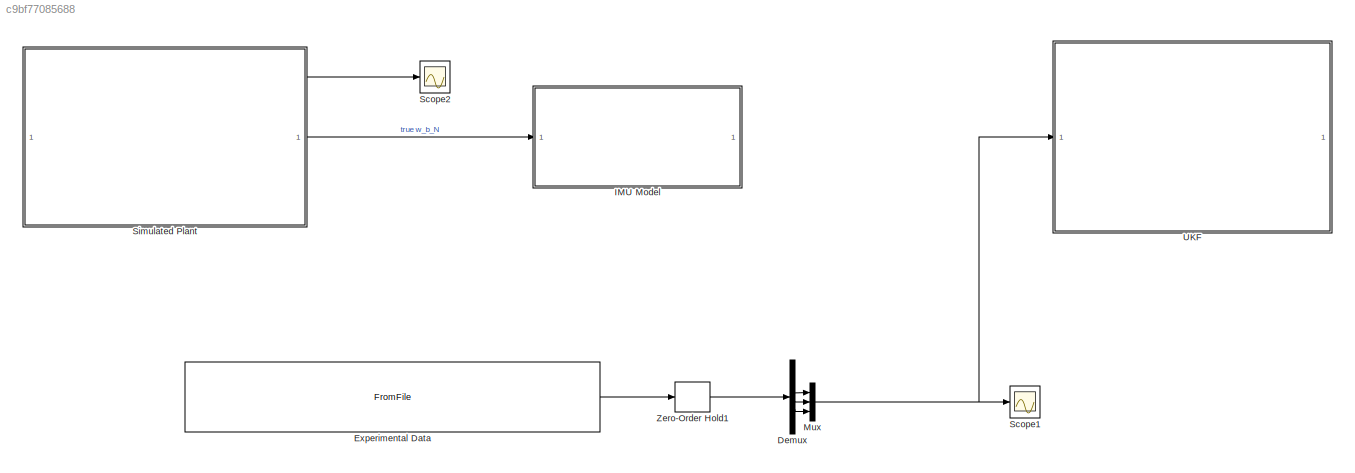
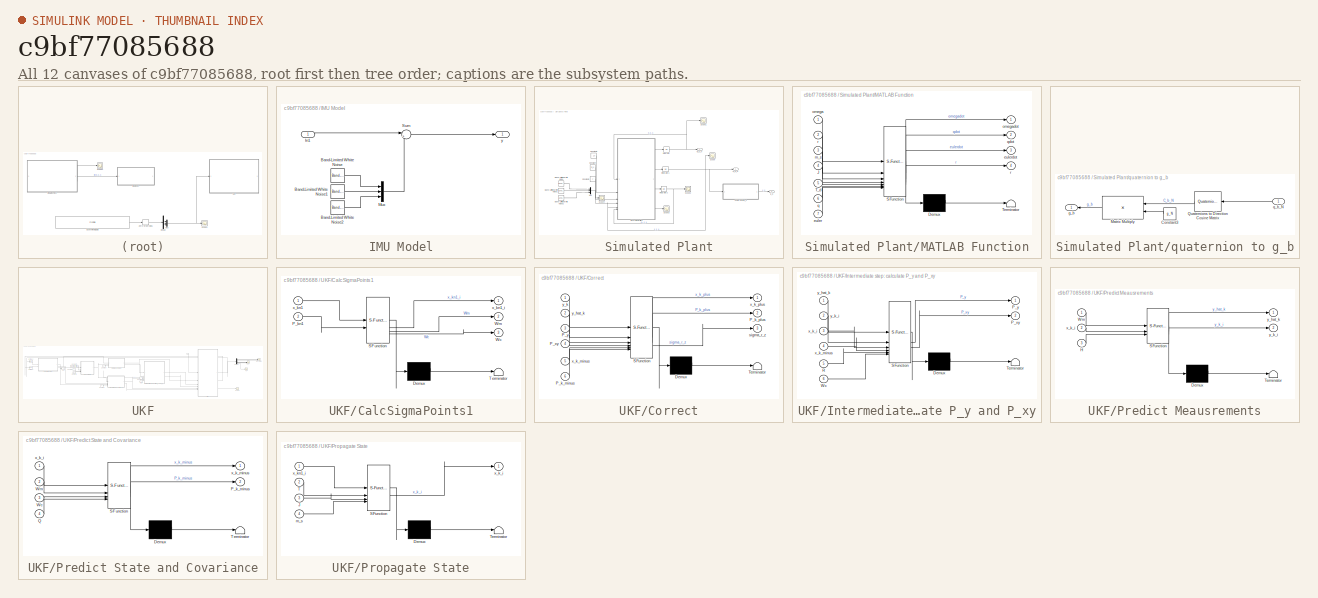
[diagram: thumbnail index - all 12 canvases of the model, root first then tree order]
MODEL slx_c9bf77085688
KIND model
CONFIG AbsTol = auto
CONFIG EnableMultiTasking = off
CONFIG FixedStep = auto
CONFIG MaxStep = auto
CONFIG MinStep = auto
CONFIG RelTol = 1e-3
CONFIG SampleTimeConstraint = Unconstrained
CONFIG SolverName = ode15s
CONFIG StartTime = 0.0
CONFIG StopTime = t_final
BLOCK [Demux] Demux
  Outputs = 8
BLOCK [FromFile] Experimental Data
  FileName = <userpath>\OneDrive\Desktop\SADS-Simulink\export_for_simulink\May_27_UKF_4.mat
  InterpolationWithinTimeRange = Zero order hold
  SampleTime = 0
BLOCK [SubSystem] IMU Model
  Commented = on
BLOCK [Reference] IMU Model/Band-Limited White Noise  REF=simulink/Sources/Band-Limited
White Noise
  SourceBlock = simulink/Sources/Band-Limited\nWhite Noise
  SourceType = Band-Limited White Noise.
BLOCK [Reference] IMU Model/Band-Limited White Noise1  REF=simulink/Sources/Band-Limited
White Noise
  SourceBlock = simulink/Sources/Band-Limited\nWhite Noise
  SourceType = Band-Limited White Noise.
BLOCK [Reference] IMU Model/Band-Limited White Noise2  REF=simulink/Sources/Band-Limited
White Noise
  SourceBlock = simulink/Sources/Band-Limited\nWhite Noise
  SourceType = Band-Limited White Noise.
BLOCK [Inport] IMU Model/In1
BLOCK [Mux] IMU Model/Mux
  DisplayOption = bar
  Inputs = 3
BLOCK [Sum] IMU Model/Sum
  Inputs = |++
BLOCK [Outport] IMU Model/y
BLOCK [Mux] Mux
  DisplayOption = bar
  Inputs = 3
BLOCK [Scope] Scope1
  Floating = off
  NumInputPorts = 1
  ScopeSpecificationString = Simulink.scopes.TimeScopeBlockCfg('CurrentConfiguration', extmgr.ConfigurationSet(extmgr.Configuration('Core','General UI',true),extmgr.Configuration('Core','Source UI',true),extmgr.Configuration('Sources','WiredSimulink',true,'DataLoggingVariableName','ScopeData1'),extmgr.Configuration('Visuals','Time Domain',true,'SerializedDisplays',{struct('MinYLimReal','-0.15537','MaxYLimReal','0.20984','YLab...<+1625ch>
BLOCK [Scope] Scope2
  Commented = on
  Floating = off
  NumInputPorts = 1
  ScopeSpecificationString = Simulink.scopes.TimeScopeBlockCfg('CurrentConfiguration', extmgr.ConfigurationSet(extmgr.Configuration('Core','General UI',true),extmgr.Configuration('Core','Source UI',true),extmgr.Configuration('Sources','WiredSimulink',true,'DataLoggingVariableName','ScopeData2'),extmgr.Configuration('Visuals','Time Domain',true,'SerializedDisplays',{struct('MinYLimReal','-0.223','MaxYLimReal','1.13589','YLabel...<+1534ch>
BLOCK [SubSystem] Simulated Plant
  Commented = on
BLOCK [Reference] Simulated Plant/Band-Limited White Noise  REF=simulink/Sources/Band-Limited
White Noise
  SourceBlock = simulink/Sources/Band-Limited\nWhite Noise
  SourceType = Band-Limited White Noise.
BLOCK [Reference] Simulated Plant/Band-Limited White Noise1  REF=simulink/Sources/Band-Limited
White Noise
  SourceBlock = simulink/Sources/Band-Limited\nWhite Noise
  SourceType = Band-Limited White Noise.
BLOCK [Reference] Simulated Plant/Band-Limited White Noise2  REF=simulink/Sources/Band-Limited
White Noise
  SourceBlock = simulink/Sources/Band-Limited\nWhite Noise
  SourceType = Band-Limited White Noise.
BLOCK [Constant] Simulated Plant/Constant
  Value = m_s
BLOCK [Constant] Simulated Plant/Constant1
  Value = J
BLOCK [Constant] Simulated Plant/Constant2
  Value = r_0
BLOCK [Integrator] Simulated Plant/Integrator
  InitialCondition = omega_0
BLOCK [Integrator] Simulated Plant/Integrator1
  InitialCondition = q_0
  NameLocation = top
BLOCK [Integrator] Simulated Plant/Integrator2
  InitialCondition = EA_0
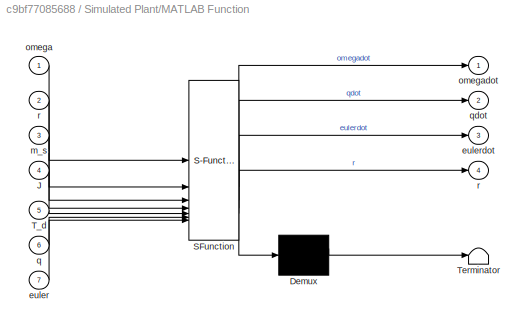
BLOCK [SubSystem] Simulated Plant/MATLAB Function
  ErrorFcn = Stateflow.Translate.translate
  PermitHierarchicalResolution = ExplicitOnly
  SFBlockType = MATLAB Function
  TreatAsAtomicUnit = on
BLOCK [Demux] Simulated Plant/MATLAB Function/ Demux 
  Outputs = 1
BLOCK [S-Function] Simulated Plant/MATLAB Function/ SFunction 
  EnableBusSupport = on
  FunctionName = sf_sfun
  PortCounts = [7 5]
  SFcnIsStateOwnerBlock = off
  SFunctionDeploymentMode = off
  Tag = Stateflow S-Function 4
BLOCK [Terminator] Simulated Plant/MATLAB Function/ Terminator 
BLOCK [Inport] Simulated Plant/MATLAB Function/J
  Port = 4
BLOCK [Inport] Simulated Plant/MATLAB Function/T_d
  Port = 5
BLOCK [Inport] Simulated Plant/MATLAB Function/euler
  Port = 7
BLOCK [Outport] Simulated Plant/MATLAB Function/eulerdot
  Port = 3
BLOCK [Inport] Simulated Plant/MATLAB Function/m_s
  Port = 3
BLOCK [Inport] Simulated Plant/MATLAB Function/omega
BLOCK [Outport] Simulated Plant/MATLAB Function/omegadot
BLOCK [Inport] Simulated Plant/MATLAB Function/q
  Port = 6
BLOCK [Outport] Simulated Plant/MATLAB Function/qdot
  Port = 2
BLOCK [Outport] Simulated Plant/MATLAB Function/r
  Port = 4
BLOCK [Inport] Simulated Plant/MATLAB Function/r 
  Port = 2
BLOCK [Mux] Simulated Plant/Mux
  DisplayOption = bar
  Inputs = 3
BLOCK [Scope] Simulated Plant/Scope
  Floating = off
  NumInputPorts = 1
  ScopeSpecificationString = Simulink.scopes.TimeScopeBlockCfg('CurrentConfiguration', extmgr.ConfigurationSet(extmgr.Configuration('Core','General UI',true),extmgr.Configuration('Core','Source UI',true),extmgr.Configuration('Sources','WiredSimulink',true,'DataLogging',true,'DataLoggingVariableName','q_b_N','DataLoggingSaveFormat','StructureWithTime'),extmgr.Configuration('Visuals','Time Domain',true,'SerializedDisplays',{str...<+1570ch>
BLOCK [Scope] Simulated Plant/Scope1
  Floating = off
  NumInputPorts = 1
  ScopeSpecificationString = Simulink.scopes.TimeScopeBlockCfg('CurrentConfiguration', extmgr.ConfigurationSet(extmgr.Configuration('Core','General UI',true),extmgr.Configuration('Core','Source UI',true),extmgr.Configuration('Sources','WiredSimulink',true,'DataLoggingVariableName','ScopeData1'),extmgr.Configuration('Visuals','Time Domain',true,'SerializedDisplays',{struct('MinYLimReal','0.00741','MaxYLimReal','0.55473','YLabe...<+1503ch>
BLOCK [Scope] Simulated Plant/Scope2
  Floating = off
  NumInputPorts = 1
  ScopeSpecificationString = Simulink.scopes.TimeScopeBlockCfg('CurrentConfiguration', extmgr.ConfigurationSet(extmgr.Configuration('Core','General UI',true),extmgr.Configuration('Core','Source UI',true),extmgr.Configuration('Sources','WiredSimulink',true,'DataLoggingVariableName','EA_b_N','DataLogging',true,'DataLoggingSaveFormat','StructureWithTime'),extmgr.Configuration('Visuals','Time Domain',true,'SerializedDisplays',{st...<+1609ch>
BLOCK [Scope] Simulated Plant/Scope3
  Floating = off
  NumInputPorts = 1
  ScopeSpecificationString = Simulink.scopes.TimeScopeBlockCfg('CurrentConfiguration', extmgr.ConfigurationSet(extmgr.Configuration('Core','General UI',true),extmgr.Configuration('Core','Source UI',true),extmgr.Configuration('Sources','WiredSimulink',true,'DataLoggingVariableName','r_b','DataLogging',true,'DataLoggingSaveFormat','StructureWithTime'),extmgr.Configuration('Visuals','Time Domain',true,'SerializedDisplays',{struc...<+1619ch>
BLOCK [Scope] Simulated Plant/Scope4
  Floating = off
  NumInputPorts = 1
  ScopeSpecificationString = Simulink.scopes.TimeScopeBlockCfg('CurrentConfiguration', extmgr.ConfigurationSet(extmgr.Configuration('Core','General UI',true),extmgr.Configuration('Core','Source UI',true),extmgr.Configuration('Sources','WiredSimulink',true,'DataLoggingVariableName','ScopeData1'),extmgr.Configuration('Visuals','Time Domain',true,'SerializedDisplays',{struct('MinYLimReal','-0.000014','MaxYLimReal','0.000013','YL...<+1567ch>
BLOCK [Outport] Simulated Plant/g_b
  Port = 3
BLOCK [Outport] Simulated Plant/q_b_N
BLOCK [SubSystem] Simulated Plant/quaternion to g_b
  NameLocation = top
BLOCK [Constant] Simulated Plant/quaternion to g_b/Constant3
  NameLocation = top
  Value = g_N
BLOCK [Product] Simulated Plant/quaternion to g_b/Matrix Multiply
  Multiplication = Matrix(*)
  NameLocation = top
BLOCK [Reference] Simulated Plant/quaternion to g_b/Quaternions to Direction Cosine Matrix  REF=sharedtransform/Quaternions to 
Direction Cosine Matrix
  NameLocation = top
  SourceBlock = sharedtransform/Quaternions to \nDirection Cosine Matrix
  SourceType = Quaternion2DCM
BLOCK [Outport] Simulated Plant/quaternion to g_b/g_b
  NameLocation = top
BLOCK [Inport] Simulated Plant/quaternion to g_b/q_b_N
  NameLocation = top
BLOCK [Outport] Simulated Plant/w_b_N
  Port = 2
BLOCK [SubSystem] UKF
  TreatAsAtomicUnit = on
BLOCK [Scope] UKF/Body Rates
  Floating = off
  NumInputPorts = 3
  ScopeSpecificationString = Simulink.scopes.TimeScopeBlockCfg('CurrentConfiguration', extmgr.ConfigurationSet(extmgr.Configuration('Core','General UI',true),extmgr.Configuration('Core','Source UI',true),extmgr.Configuration('Sources','WiredSimulink',true,'DataLoggingVariableName','ScopeData3'),extmgr.Configuration('Visuals','Time Domain',true,'SerializedDisplays',{struct('MinYLimReal','-0.36403','MaxYLimReal','0.3524','YLabe...<+1528ch>
BLOCK [SubSystem] UKF/CalcSigmaPoints1
  ErrorFcn = Stateflow.Translate.translate
  PermitHierarchicalResolution = ExplicitOnly
  SFBlockType = MATLAB Function
  TreatAsAtomicUnit = on
BLOCK [Demux] UKF/CalcSigmaPoints1/ Demux 
  Outputs = 1
BLOCK [S-Function] UKF/CalcSigmaPoints1/ SFunction 
  EnableBusSupport = on
  FunctionName = sf_sfun
  PortCounts = [2 4]
  SFcnIsStateOwnerBlock = off
  SFunctionDeploymentMode = off
  Tag = Stateflow S-Function 10
BLOCK [Terminator] UKF/CalcSigmaPoints1/ Terminator 
BLOCK [Inport] UKF/CalcSigmaPoints1/P_kn1
  Port = 2
BLOCK [Outport] UKF/CalcSigmaPoints1/Wc
  Port = 3
BLOCK [Outport] UKF/CalcSigmaPoints1/Wm
  Port = 2
BLOCK [Inport] UKF/CalcSigmaPoints1/x_kn1
BLOCK [Outport] UKF/CalcSigmaPoints1/x_kn1_i
BLOCK [Constant] UKF/Constant2
  Value = sample_time
BLOCK [Constant] UKF/Constant3
  Value = J
BLOCK [Constant] UKF/Constant5
  Value = m_s
BLOCK [Constant] UKF/Constant6
  Value = Q
BLOCK [Constant] UKF/Constant7
  Value = H
BLOCK [Constant] UKF/Constant8
  Value = R
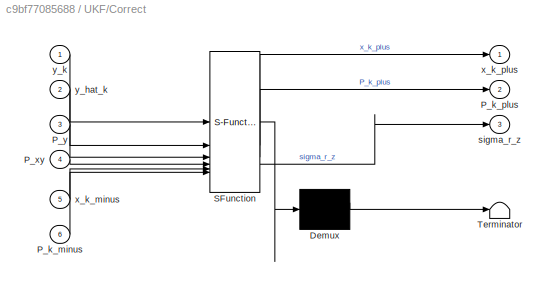
BLOCK [SubSystem] UKF/Correct
  ErrorFcn = Stateflow.Translate.translate
  PermitHierarchicalResolution = ExplicitOnly
  SFBlockType = MATLAB Function
  TreatAsAtomicUnit = on
BLOCK [Demux] UKF/Correct/ Demux 
  Outputs = 1
BLOCK [S-Function] UKF/Correct/ SFunction 
  EnableBusSupport = on
  FunctionName = sf_sfun
  PortCounts = [6 4]
  SFcnIsStateOwnerBlock = off
  SFunctionDeploymentMode = off
  Tag = Stateflow S-Function 12
BLOCK [Terminator] UKF/Correct/ Terminator 
BLOCK [Inport] UKF/Correct/P_k_minus
  Port = 6
BLOCK [Outport] UKF/Correct/P_k_plus
  Port = 2
BLOCK [Inport] UKF/Correct/P_xy
  Port = 4
BLOCK [Inport] UKF/Correct/P_y
  Port = 3
BLOCK [Outport] UKF/Correct/sigma_r_z
  Port = 3
BLOCK [Inport] UKF/Correct/x_k_minus
  Port = 5
BLOCK [Outport] UKF/Correct/x_k_plus
BLOCK [Inport] UKF/Correct/y_hat_k
  Port = 2
BLOCK [Inport] UKF/Correct/y_k
BLOCK [Demux] UKF/Demux1
  Outputs = 8
BLOCK [From] UKF/From
BLOCK [Goto] UKF/Goto
BLOCK [SubSystem] UKF/Intermediate step: calculate P_y and P_xy
  ErrorFcn = Stateflow.Translate.translate
  PermitHierarchicalResolution = ExplicitOnly
  SFBlockType = MATLAB Function
  TreatAsAtomicUnit = on
BLOCK [Demux] UKF/Intermediate step: calculate P_y and P_xy/ Demux 
  Outputs = 1
BLOCK [S-Function] UKF/Intermediate step: calculate P_y and P_xy/ SFunction 
  EnableBusSupport = on
  FunctionName = sf_sfun
  PortCounts = [6 3]
  SFcnIsStateOwnerBlock = off
  SFunctionDeploymentMode = off
  Tag = Stateflow S-Function 13
BLOCK [Terminator] UKF/Intermediate step: calculate P_y and P_xy/ Terminator 
BLOCK [Outport] UKF/Intermediate step: calculate P_y and P_xy/P_xy
  Port = 2
BLOCK [Outport] UKF/Intermediate step: calculate P_y and P_xy/P_y
BLOCK [Inport] UKF/Intermediate step: calculate P_y and P_xy/R
  Port = 5
BLOCK [Inport] UKF/Intermediate step: calculate P_y and P_xy/Wc
  Port = 6
BLOCK [Inport] UKF/Intermediate step: calculate P_y and P_xy/x_k_i
  Port = 3
BLOCK [Inport] UKF/Intermediate step: calculate P_y and P_xy/x_k_minus
  Port = 4
BLOCK [Inport] UKF/Intermediate step: calculate P_y and P_xy/y_hat_k
BLOCK [Inport] UKF/Intermediate step: calculate P_y and P_xy/y_k_i
  Port = 2
BLOCK [SubSystem] UKF/Predict Meausrements
  ErrorFcn = Stateflow.Translate.translate
  PermitHierarchicalResolution = ExplicitOnly
  SFBlockType = MATLAB Function
  TreatAsAtomicUnit = on
BLOCK [Demux] UKF/Predict Meausrements/ Demux 
  Outputs = 1
BLOCK [S-Function] UKF/Predict Meausrements/ SFunction 
  EnableBusSupport = on
  FunctionName = sf_sfun
  PortCounts = [3 3]
  SFcnIsStateOwnerBlock = off
  SFunctionDeploymentMode = off
  Tag = Stateflow S-Function 16
BLOCK [Terminator] UKF/Predict Meausrements/ Terminator 
BLOCK [Inport] UKF/Predict Meausrements/H
  Port = 3
BLOCK [Inport] UKF/Predict Meausrements/Wm
BLOCK [Inport] UKF/Predict Meausrements/x_k_i
  Port = 2
BLOCK [Outport] UKF/Predict Meausrements/y_hat_k
BLOCK [Outport] UKF/Predict Meausrements/y_k_i
  Port = 2
BLOCK [SubSystem] UKF/Predict State and Covariance
  ErrorFcn = Stateflow.Translate.translate
  PermitHierarchicalResolution = ExplicitOnly
  SFBlockType = MATLAB Function
  TreatAsAtomicUnit = on
BLOCK [Demux] UKF/Predict State and Covariance/ Demux 
  Outputs = 1
BLOCK [S-Function] UKF/Predict State and Covariance/ SFunction 
  EnableBusSupport = on
  FunctionName = sf_sfun
  PortCounts = [4 3]
  SFcnIsStateOwnerBlock = off
  SFunctionDeploymentMode = off
  Tag = Stateflow S-Function 17
BLOCK [Terminator] UKF/Predict State and Covariance/ Terminator 
BLOCK [Outport] UKF/Predict State and Covariance/P_k_minus
  Port = 2
BLOCK [Inport] UKF/Predict State and Covariance/Q
  Port = 4
BLOCK [Inport] UKF/Predict State and Covariance/Wc
  Port = 3
BLOCK [Inport] UKF/Predict State and Covariance/Wm
  Port = 2
BLOCK [Inport] UKF/Predict State and Covariance/x_k_i
BLOCK [Outport] UKF/Predict State and Covariance/x_k_minus
BLOCK [SubSystem] UKF/Propagate State
  ErrorFcn = Stateflow.Translate.translate
  PermitHierarchicalResolution = ExplicitOnly
  SFBlockType = MATLAB Function
  TreatAsAtomicUnit = on
BLOCK [Demux] UKF/Propagate State/ Demux 
  Outputs = 1
BLOCK [S-Function] UKF/Propagate State/ SFunction 
  EnableBusSupport = on
  FunctionName = sf_sfun
  PortCounts = [4 2]
  SFcnIsStateOwnerBlock = off
  SFunctionDeploymentMode = off
  Tag = Stateflow S-Function 15
BLOCK [Terminator] UKF/Propagate State/ Terminator 
BLOCK [Inport] UKF/Propagate State/J
  Port = 3
BLOCK [Inport] UKF/Propagate State/T
  Port = 2
BLOCK [Inport] UKF/Propagate State/m_s
  Port = 4
BLOCK [Outport] UKF/Propagate State/x_k_i
BLOCK [Inport] UKF/Propagate State/x_kn1_i
BLOCK [Scope] UKF/Quat
  Floating = off
  NumInputPorts = 4
  ScopeSpecificationString = Simulink.scopes.TimeScopeBlockCfg('CurrentConfiguration', extmgr.ConfigurationSet(extmgr.Configuration('Core','General UI',true),extmgr.Configuration('Core','Source UI',true),extmgr.Configuration('Sources','WiredSimulink',true,'DataLoggingVariableName','ScopeData1'),extmgr.Configuration('Visuals','Time Domain',true,'SerializedDisplays',{struct('MinYLimReal','-0.25024','MaxYLimReal','0.94116','YLab...<+1544ch>
BLOCK [Scope] UKF/Scope4
  Floating = off
  NumInputPorts = 1
  ScopeSpecificationString = Simulink.scopes.TimeScopeBlockCfg('CurrentConfiguration', extmgr.ConfigurationSet(extmgr.Configuration('Core','General UI',true),extmgr.Configuration('Core','Source UI',true),extmgr.Configuration('Sources','WiredSimulink',true,'DataLoggingVariableName','sigma_r_z','DataLogging',true,'DataLoggingSaveFormat','StructureWithTime'),extmgr.Configuration('Visuals','Time Domain',true,'SerializedDisplays',...<+1579ch>
BLOCK [UnitDelay] UKF/Unit Delay1
  HasFrameUpgradeWarning = on
  InitialCondition = P_0
  SampleTime = sample_time
BLOCK [UnitDelay] UKF/Unit Delay2
  HasFrameUpgradeWarning = on
  InitialCondition = x_0
  SampleTime = sample_time
BLOCK [Scope] UKF/r_z
  Floating = off
  NumInputPorts = 1
  ScopeSpecificationString = Simulink.scopes.TimeScopeBlockCfg('CurrentConfiguration', extmgr.ConfigurationSet(extmgr.Configuration('Core','General UI',true),extmgr.Configuration('Core','Source UI',true),extmgr.Configuration('Sources','WiredSimulink',true,'DataLoggingVariableName','r_z_est','DataLogging',true,'DataLoggingSaveFormat','StructureWithTime'),extmgr.Configuration('Visuals','Time Domain',true,'SerializedDisplays',{s...<+1701ch>
BLOCK [Inport] UKF/y
  NameLocation = left
BLOCK [ZeroOrderHold] Zero-Order Hold1
  SampleTime = sample_time
LINE Demux:4 -> Mux:1
LINE Demux:5 -> Mux:2
LINE Demux:6 -> Mux:3
LINE Experimental Data:1 -> Zero-Order Hold1:1
LINE IMU Model/Band-Limited White Noise1:1 -> IMU Model/Mux:2
LINE IMU Model/Band-Limited White Noise2:1 -> IMU Model/Mux:3
LINE IMU Model/Band-Limited White Noise:1 -> IMU Model/Mux:1
LINE IMU Model/In1:1 -> IMU Model/Sum:1
LINE IMU Model/Mux:1 -> IMU Model/Sum:2
LINE IMU Model/Sum:1 -> IMU Model/y:1
NET Mux:1 -> Scope1:1, UKF:1
LINE Simulated Plant/Band-Limited White Noise1:1 -> Simulated Plant/Mux:2
LINE Simulated Plant/Band-Limited White Noise2:1 -> Simulated Plant/Mux:3
LINE Simulated Plant/Band-Limited White Noise:1 -> Simulated Plant/Mux:1
LINE Simulated Plant/Constant1:1 -> Simulated Plant/MATLAB Function:4
LINE Simulated Plant/Constant2:1 -> Simulated Plant/MATLAB Function:2
LINE Simulated Plant/Constant:1 -> Simulated Plant/MATLAB Function:3
NET Simulated Plant/Integrator1:1 -> Simulated Plant/MATLAB Function:6, Simulated Plant/Scope:1, Simulated Plant/q_b_N:1, Simulated Plant/quaternion to g_b:1
NET Simulated Plant/Integrator2:1 -> Simulated Plant/MATLAB Function:7, Simulated Plant/Scope2:1
NET Simulated Plant/Integrator:1 -> Simulated Plant/MATLAB Function:1, Simulated Plant/Scope1:1, Simulated Plant/w_b_N:1
LINE Simulated Plant/MATLAB Function:1 -> Simulated Plant/Integrator:1
LINE Simulated Plant/MATLAB Function:2 -> Simulated Plant/Integrator1:1
LINE Simulated Plant/MATLAB Function:3 -> Simulated Plant/Integrator2:1
LINE Simulated Plant/MATLAB Function:4 -> Simulated Plant/Scope3:1
LINE Simulated Plant/Mux:1 -> Simulated Plant/Scope4:1
LINE Simulated Plant/quaternion to g_b/Constant3:1 -> Simulated Plant/quaternion to g_b/Matrix Multiply:2
LINE Simulated Plant/quaternion to g_b/Matrix Multiply:1 -> Simulated Plant/quaternion to g_b/g_b:1
LINE Simulated Plant/quaternion to g_b/Quaternions to Direction Cosine Matrix:1 -> Simulated Plant/quaternion to g_b/Matrix Multiply:1
LINE Simulated Plant/quaternion to g_b/q_b_N:1 -> Simulated Plant/quaternion to g_b/Quaternions to Direction Cosine Matrix:1
LINE Simulated Plant/quaternion to g_b:1 -> Simulated Plant/g_b:1
LINE Simulated Plant:1 -> Scope2:1
LINE Simulated Plant:2 -> IMU Model:1
LINE UKF/CalcSigmaPoints1:1 -> UKF/Propagate State:1
NET UKF/CalcSigmaPoints1:2 -> UKF/Predict Meausrements:1, UKF/Predict State and Covariance:2
NET UKF/CalcSigmaPoints1:3 -> UKF/Goto:1, UKF/Predict State and Covariance:3
LINE UKF/Constant2:1 -> UKF/Propagate State:2
LINE UKF/Constant3:1 -> UKF/Propagate State:3
LINE UKF/Constant5:1 -> UKF/Propagate State:4
LINE UKF/Constant6:1 -> UKF/Predict State and Covariance:4
LINE UKF/Constant7:1 -> UKF/Predict Meausrements:3
LINE UKF/Constant8:1 -> UKF/Intermediate step: calculate P_y and P_xy:5
NET UKF/Correct:1 -> UKF/Demux1:1, UKF/Unit Delay2:1
LINE UKF/Correct:2 -> UKF/Unit Delay1:1
LINE UKF/Correct:3 -> UKF/Scope4:1
LINE UKF/Demux1:1 -> UKF/Body Rates:1
LINE UKF/Demux1:2 -> UKF/Body Rates:2
LINE UKF/Demux1:3 -> UKF/Body Rates:3
LINE UKF/Demux1:4 -> UKF/Quat:1
LINE UKF/Demux1:5 -> UKF/Quat:2
LINE UKF/Demux1:6 -> UKF/Quat:3
LINE UKF/Demux1:7 -> UKF/Quat:4
LINE UKF/Demux1:8 -> UKF/r_z:1
LINE UKF/From:1 -> UKF/Intermediate step: calculate P_y and P_xy:6
LINE UKF/Intermediate step: calculate P_y and P_xy:1 -> UKF/Correct:3
LINE UKF/Intermediate step: calculate P_y and P_xy:2 -> UKF/Correct:4
NET UKF/Predict Meausrements:1 -> UKF/Correct:2, UKF/Intermediate step: calculate P_y and P_xy:1
LINE UKF/Predict Meausrements:2 -> UKF/Intermediate step: calculate P_y and P_xy:2
NET UKF/Predict State and Covariance:1 -> UKF/Correct:5, UKF/Intermediate step: calculate P_y and P_xy:4
LINE UKF/Predict State and Covariance:2 -> UKF/Correct:6
NET UKF/Propagate State:1 -> UKF/Intermediate step: calculate P_y and P_xy:3, UKF/Predict Meausrements:2, UKF/Predict State and Covariance:1
LINE UKF/Unit Delay1:1 -> UKF/CalcSigmaPoints1:2
LINE UKF/Unit Delay2:1 -> UKF/CalcSigmaPoints1:1
LINE UKF/y:1 -> UKF/Correct:1
LINE Zero-Order Hold1:1 -> Demux:1
note: NET lines group one-source signal fan-out (src -> all destinations, sorted); 1:1 wires keep LINE
CHART Simulated Plant/MATLAB Function states=1 transitions=1
  STATE_LABEL 'eML_blk_kernel()'
  STATE_LABEL 'SCRIPT:\nfunction [omegadot, qdot,eulerdot,r] = fcn(omega,r,m_s,J,T_d,q,euler)\n% Equations of motion developed in the work of Chesi.\n\ng = 9.81; % \n\n% Gravity vector in body-frame\nC_N_b = [2*q(1)^2-1+2*q(2)^2 2*q(2)*q(3)-2*q(1)*q(4) 2*q(2)*q(4)+2*q(1)*q(3);\n       2*q(2)*q(3)+2*q(1)*q(4) 2*q(1)^2-1+2*q(3)^2 2*q(3)*q(4)-2*q(1)*q(2);\n       2*q(2)*q(4)-2*q(1)*q(3) 2*q(3)*q(4)+2*q(1)*q(2) 2*q(1)^2-1+2*...<+1020ch>'
CHART UKF/CalcSigmaPoints1 states=1 transitions=1
  STATE_LABEL 'eML_blk_kernel()'
  STATE_LABEL "SCRIPT:\nfunction [x_kn1_i,Wm,Wc] = calc_sigma_points(x_kn1, P_kn1)\n\nn = size(x_kn1,1);\n\nalpha   = 1e-3;         % small, positive\nkappa   = 0;            % usually 0\nbeta    = 2;            % optimal for Gaussian\nlambda  = alpha^2*(n+kappa) - n;\n\n[root,~] = chol((n+lambda)*P_kn1,'lower');\n\nx_kn1_i = zeros(n,2*n + 1);\nx_kn1_i(:,1) = x_kn1; % central point\n\nfor i = 1:n\n    x_kn1_i(:,i+1)   = x_kn1 +...<+189ch>"
CHART UKF/Correct states=1 transitions=1
  STATE_LABEL 'eML_blk_kernel()'
  STATE_LABEL "SCRIPT:\nfunction [x_k_plus,P_k_plus,sigma_r_z] = correct(y_k, y_hat_k, P_y,P_xy,x_k_minus,P_k_minus)\n\nK = P_xy/P_y;\n\n\nx_k_plus = x_k_minus + K*(y_k-y_hat_k);\nx_k_plus(4:7) = x_k_plus(4:7)./norm(x_k_plus(4:7));\nP_k_plus = P_k_minus - K*P_y*K';\n\nsigma_r_z = sqrt(P_k_plus(end,end));\n"
CHART UKF/Intermediate step: calculate P_y and P_xy states=1 transitions=1
  STATE_LABEL 'eML_blk_kernel()'
  STATE_LABEL "SCRIPT:\nfunction [P_y,P_xy] = calc_Py_and_Px(y_hat_k,y_k_i,x_k_i,x_k_minus,R,Wc)\n\ndiff_y = y_k_i - y_hat_k;\ndiff_x = x_k_i - x_k_minus;\n\nP_y = diff_y * diag(Wc) * diff_y' + R;\nP_xy = diff_x * diag(Wc) * diff_y';"
CHART UKF/Propagate State states=1 transitions=1
  STATE_LABEL 'eML_blk_kernel()'
  STATE_LABEL 'SCRIPT:\nfunction x_k_i = f(x_kn1_i,T,J,m_s)\n    n = size(x_kn1_i,1);\n    x_k_i = zeros(n,2*n+1);\n    for i = 1:2*n+1\n        omega_kn1 = x_kn1_i(1:3,i);\n        eta_kn1 = x_kn1_i(4,i);\n        eps_kn1 = x_kn1_i(5:7,i);\n\n        q = [eta_kn1; eps_kn1;];\n        % Gravity vector in body-frame\n        g_b = [2*q(1)^2-1+2*q(2)^2 2*q(2)*q(3)-2*q(1)*q(4) 2*q(2)*q(4)+2*q(1)*q(3);\n                2*q(2)*q...<+1105ch>'
CHART UKF/Predict Meausrements states=1 transitions=1
  STATE_LABEL 'eML_blk_kernel()'
  STATE_LABEL 'SCRIPT:\nfunction [y_hat_k,y_k_i]   = predict_measurements(Wm,x_k_i,H)\n\ny_k_i = H * x_k_i;\n\ny_hat_k = y_k_i * Wm;'
CHART UKF/Predict State and Covariance states=1 transitions=1
  STATE_LABEL 'eML_blk_kernel()'
  STATE_LABEL "SCRIPT:\nfunction [x_k_minus,P_k_minus] = predict_state_and_covariance(x_k_i,Wm,Wc,Q)\n\nx_k_minus = x_k_i * Wm;  % weighted mean  (matrix‑vector product)\nx_k_minus(4:7) = x_k_minus(4:7)./norm(x_k_minus(4:7));\n\nP_k_minus = (x_k_i - x_k_minus)*diag(Wc) * (x_k_i - x_k_minus)'+ Q;  "
CHART  states=0 transitions=0
CHART  states=0 transitions=0
CHART  states=0 transitions=0
CHART  states=0 transitions=0
CHART  states=0 transitions=0
CHART  states=0 transitions=0
CHART  states=0 transitions=0
